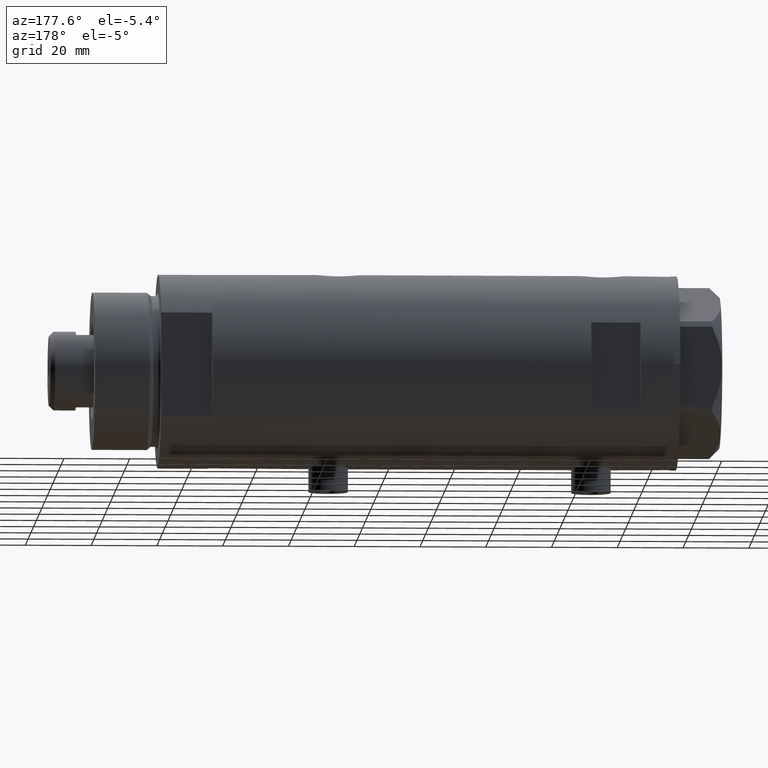
[diagram: clean part render]
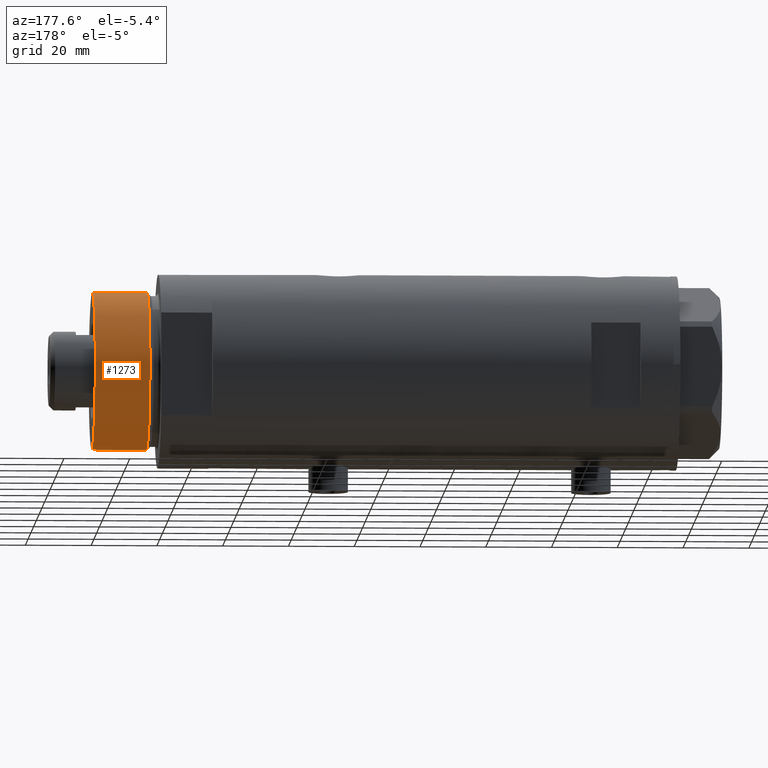
[diagram: same view with one face highlighted and labeled with its STEP entity id]
A machine part, auxiliary view. The second image highlights one B-rep face of the part: STEP entity #1273.
In plain terms, the highlighted cylindrical surface (partial cylindrical patch) has radius 24 mm, axis along (-1, -0, 0).
Its self-contained STEP definition (entity closure, byte-faithful):
#10 = CARTESIAN_POINT ( 'NONE',  ( 24.00000000000000355, 2.939152317953648289E-15, 35.50000000000000711 ) ) ;
#38 = ORIENTED_EDGE ( 'NONE', *, *, #3953, .T. ) ;
#78 = DIRECTION ( 'NONE',  ( 0.000000000000000000, 0.000000000000000000, 1.000000000000000000 ) ) ;
#484 = VECTOR ( 'NONE', #532, 1000.000000000000000 ) ;
#500 = CARTESIAN_POINT ( 'NONE',  ( 24.00000000000000355, 2.939152317953648289E-15, 35.50000000000000711 ) ) ;
#532 = DIRECTION ( 'NONE',  ( -0.000000000000000000, -0.000000000000000000, -1.000000000000000000 ) ) ;
#649 = VERTEX_POINT ( 'NONE', #10 ) ;
#676 = ORIENTED_EDGE ( 'NONE', *, *, #4239, .T. ) ;
#1123 = CIRCLE ( 'NONE', #2723, 24.00000000000000355 ) ;
#1273 = ADVANCED_FACE ( 'NONE', ( #1628 ), #4587, .T. ) ;
#1309 = CARTESIAN_POINT ( 'NONE',  ( -24.00000000000000355, 0.000000000000000000, 35.50000000000000711 ) ) ;
#1330 = CARTESIAN_POINT ( 'NONE',  ( -24.00000000000000355, 0.000000000000000000, 18.87384048104054202 ) ) ;
#1419 = VERTEX_POINT ( 'NONE', #1330 ) ;
#1535 = DIRECTION ( 'NONE',  ( 1.000000000000000000, 0.000000000000000000, 0.000000000000000000 ) ) ;
#1600 = DIRECTION ( 'NONE',  ( -0.000000000000000000, -0.000000000000000000, -1.000000000000000000 ) ) ;
#1628 = FACE_OUTER_BOUND ( 'NONE', #4475, .T. ) ;
#1660 = DIRECTION ( 'NONE',  ( -1.000000000000000000, 0.000000000000000000, 0.000000000000000000 ) ) ;
#1781 = CIRCLE ( 'NONE', #4637, 24.00000000000000355 ) ;
#2067 = ORIENTED_EDGE ( 'NONE', *, *, #3492, .F. ) ;
#2438 = EDGE_CURVE ( 'NONE', #649, #4294, #1123, .T. ) ;
#2672 = DIRECTION ( 'NONE',  ( -0.000000000000000000, -0.000000000000000000, -1.000000000000000000 ) ) ;
#2723 = AXIS2_PLACEMENT_3D ( 'NONE', #3745, #78, #1535 ) ;
#2726 = LINE ( 'NONE', #4210, #484 ) ;
#3027 = VECTOR ( 'NONE', #2672, 1000.000000000000000 ) ;
#3047 = ORIENTED_EDGE ( 'NONE', *, *, #2438, .F. ) ;
#3327 = VERTEX_POINT ( 'NONE', #4438 ) ;
#3417 = LINE ( 'NONE', #500, #3027 ) ;
#3492 = EDGE_CURVE ( 'NONE', #4294, #1419, #2726, .T. ) ;
#3493 = AXIS2_PLACEMENT_3D ( 'NONE', #4164, #1600, #1660 ) ;
#3745 = CARTESIAN_POINT ( 'NONE',  ( 0.000000000000000000, 0.000000000000000000, 35.50000000000000711 ) ) ;
#3953 = EDGE_CURVE ( 'NONE', #649, #3327, #3417, .T. ) ;
#4164 = CARTESIAN_POINT ( 'NONE',  ( 0.000000000000000000, 0.000000000000000000, 35.50000000000000711 ) ) ;
#4210 = CARTESIAN_POINT ( 'NONE',  ( -24.00000000000000355, 0.000000000000000000, 35.50000000000000711 ) ) ;
#4234 = CARTESIAN_POINT ( 'NONE',  ( 0.000000000000000000, 0.000000000000000000, 18.87384048104054202 ) ) ;
#4239 = EDGE_CURVE ( 'NONE', #3327, #1419, #1781, .T. ) ;
#4294 = VERTEX_POINT ( 'NONE', #1309 ) ;
#4315 = DIRECTION ( 'NONE',  ( 1.000000000000000000, 0.000000000000000000, 0.000000000000000000 ) ) ;
#4438 = CARTESIAN_POINT ( 'NONE',  ( 24.00000000000000355, 2.939152317953648289E-15, 18.87384048104054202 ) ) ;
#4475 = EDGE_LOOP ( 'NONE', ( #3047, #38, #676, #2067 ) ) ;
#4587 = CYLINDRICAL_SURFACE ( 'NONE', #3493, 24.00000000000000355 ) ;
#4598 = DIRECTION ( 'NONE',  ( -0.000000000000000000, -0.000000000000000000, 1.000000000000000000 ) ) ;
#4637 = AXIS2_PLACEMENT_3D ( 'NONE', #4234, #4598, #4315 ) ;